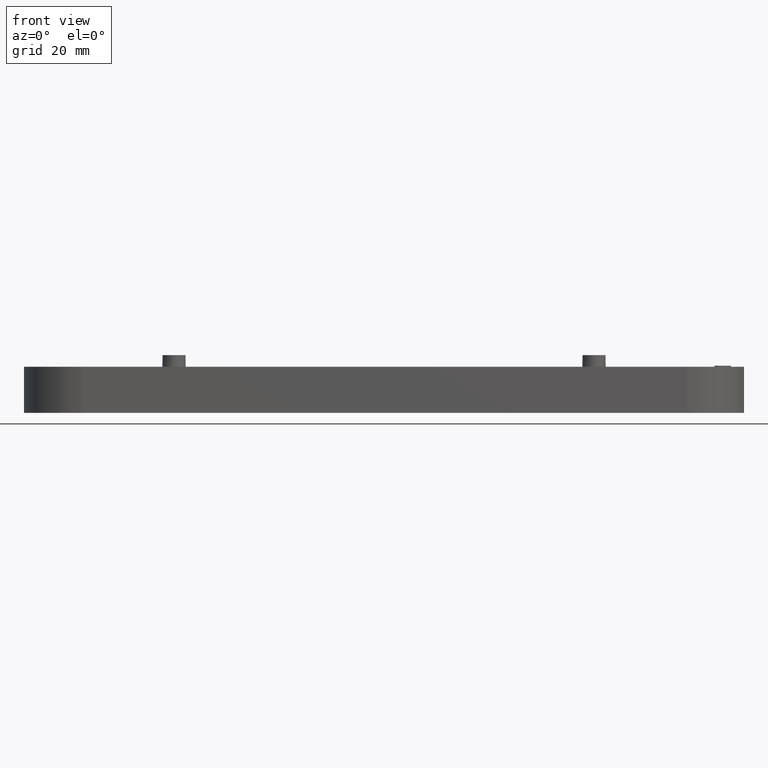
[diagram: clean part render]
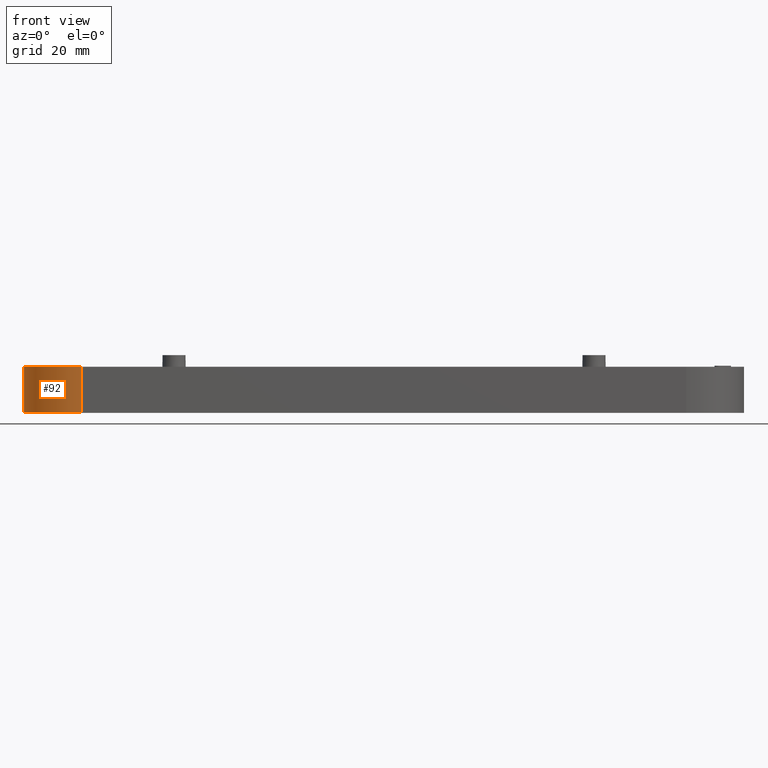
[diagram: same view with one face highlighted and labeled with its STEP entity id]
A machine part, front view. The second image highlights one B-rep face of the part: STEP entity #92.
In plain terms, the highlighted cylindrical surface (partial cylindrical patch) has radius 12.5 mm, axis along (-0, -0, -1).
Its self-contained STEP definition (entity closure, byte-faithful):
#92 = ADVANCED_FACE( '', ( #730 ), #731, .T. );
#730 = FACE_OUTER_BOUND( '', #2048, .T. );
#731 = CYLINDRICAL_SURFACE( '', #2049, 12.5000000000000 );
#2048 = EDGE_LOOP( '', ( #3482, #3483, #3484, #3485 ) );
#2049 = AXIS2_PLACEMENT_3D( '', #3486, #3487, #3488 );
#3482 = ORIENTED_EDGE( '', *, *, #8238, .T. );
#3483 = ORIENTED_EDGE( '', *, *, #8311, .F. );
#3484 = ORIENTED_EDGE( '', *, *, #8312, .F. );
#3485 = ORIENTED_EDGE( '', *, *, #8313, .T. );
#3486 = CARTESIAN_POINT( '', ( -65.4999999999999, -4.51028103753970E-015, -1.38777878078145E-014 ) );
#3487 = DIRECTION( '', ( -1.12103877145985E-048, -6.12303176911189E-017, -1.00000000000000 ) );
#3488 = DIRECTION( '', ( -1.00000000000000, 1.60814287233912E-016, -9.84670989660330E-033 ) );
#8238 = EDGE_CURVE( '', #9797, #9795, #9798, .T. );
#8311 = EDGE_CURVE( '', #9933, #9795, #9935, .T. );
#8312 = EDGE_CURVE( '', #9936, #9933, #9937, .T. );
#8313 = EDGE_CURVE( '', #9936, #9797, #9938, .T. );
#9795 = VERTEX_POINT( '', #12373 );
#9797 = VERTEX_POINT( '', #12375 );
#9798 = CIRCLE( '', #12376, 12.5000000000000 );
#9933 = VERTEX_POINT( '', #12557 );
#9935 = LINE( '', #12559, #12560 );
#9936 = VERTEX_POINT( '', #12561 );
#9937 = CIRCLE( '', #12562, 12.5000000000000 );
#9938 = LINE( '', #12563, #12564 );
#12373 = CARTESIAN_POINT( '', ( -77.9999999999999, -4.18393618362157E-015, 9.99999999999998 ) );
#12375 = CARTESIAN_POINT( '', ( -65.4999999999999, -12.5000000000000, 9.99999999999998 ) );
#12376 = AXIS2_PLACEMENT_3D( '', #16374, #16375, #16376 );
#12557 = CARTESIAN_POINT( '', ( -77.9999999999999, -4.79623936053276E-015, -1.38777878078145E-014 ) );
#12559 = CARTESIAN_POINT( '', ( -77.9999999999999, -4.79623936053276E-015, -1.38777878078145E-014 ) );
#12560 = VECTOR( '', #16501, 1000.00000000000 );
#12561 = CARTESIAN_POINT( '', ( -65.4999999999999, -12.5000000000000, -1.31124088366755E-014 ) );
#12562 = AXIS2_PLACEMENT_3D( '', #16502, #16503, #16504 );
#12563 = CARTESIAN_POINT( '', ( -65.4999999999999, -12.5000000000000, -1.31124088366755E-014 ) );
#12564 = VECTOR( '', #16505, 1000.00000000000 );
#16374 = CARTESIAN_POINT( '', ( -65.4999999999999, -3.89797786062852E-015, 9.99999999999998 ) );
#16375 = DIRECTION( '', ( -1.12103877145985E-048, -6.12303176911189E-017, -1.00000000000000 ) );
#16376 = DIRECTION( '', ( 1.60814287233912E-016, 1.00000000000000, -6.12303176911189E-017 ) );
#16501 = DIRECTION( '', ( 0.000000000000000, 6.12303176911189E-017, 1.00000000000000 ) );
#16502 = CARTESIAN_POINT( '', ( -65.4999999999999, -4.51028103753970E-015, -1.38777878078145E-014 ) );
#16503 = DIRECTION( '', ( -1.12103877145985E-048, -6.12303176911189E-017, -1.00000000000000 ) );
#16504 = DIRECTION( '', ( 1.60814287233912E-016, 1.00000000000000, -6.12303176911189E-017 ) );
#16505 = DIRECTION( '', ( 0.000000000000000, 6.12303176911189E-017, 1.00000000000000 ) );